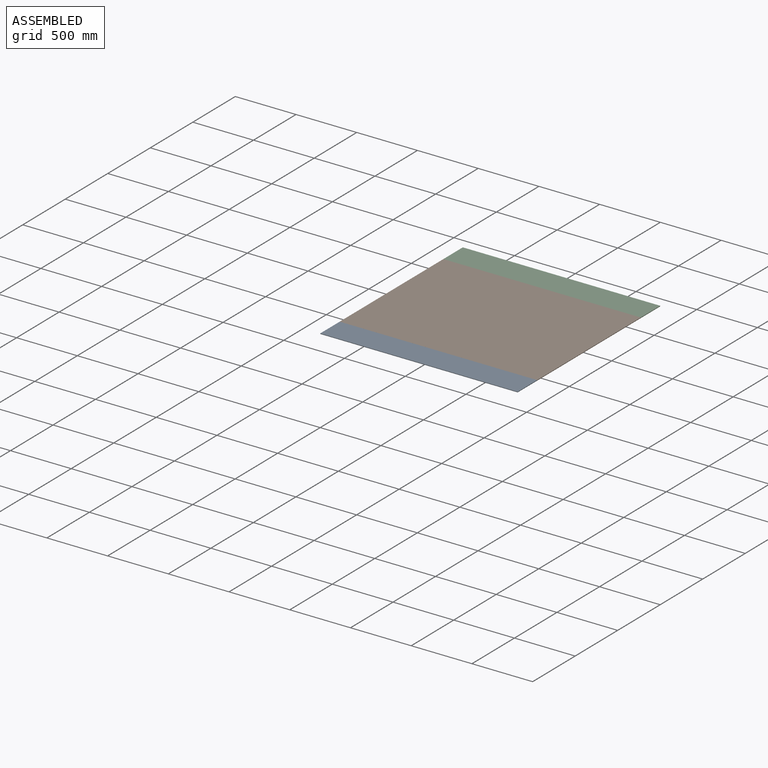
[diagram: assembled view]
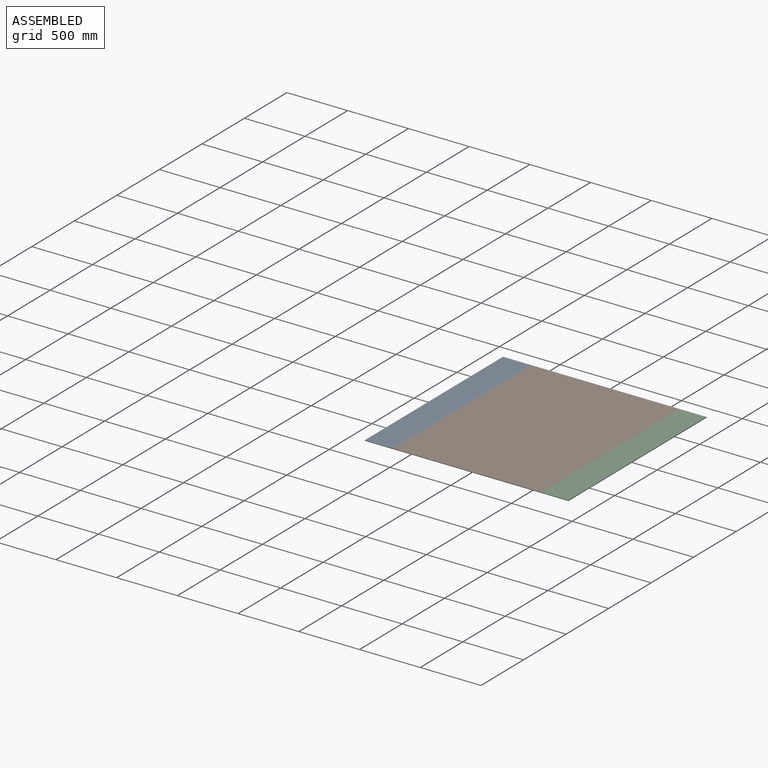
[diagram: assembled view, second angle]
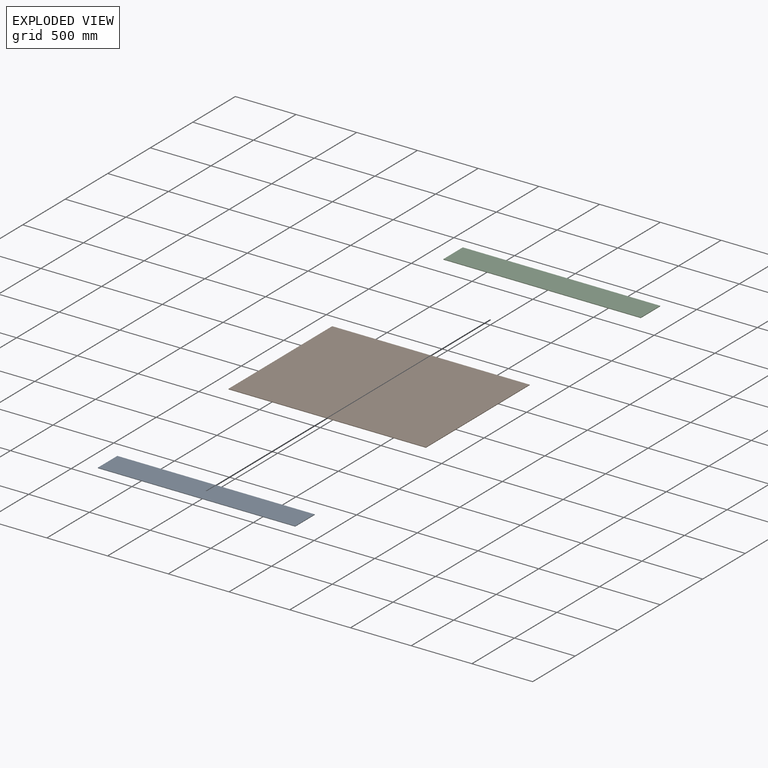
[diagram: exploded view]
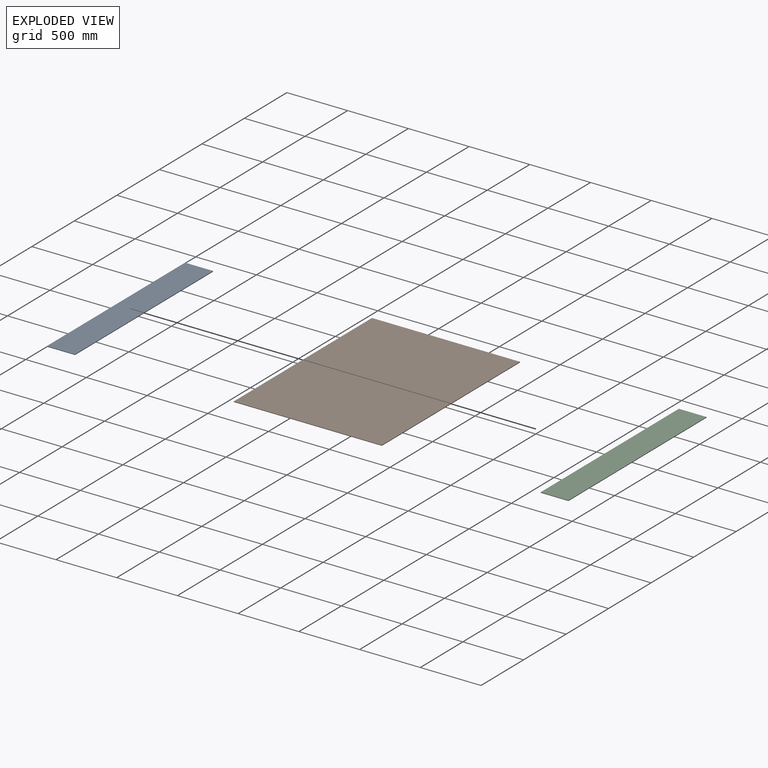
[diagram: exploded view, second angle]
ASSEMBLY  parts=3 mates=2
PART A: 6 faces, bbox 1625.6x228.6x4.8 mm
  f0: plane 1625.6x4.76mm, normal (0,1,0), area 7741.9mm2, adj f1,f3,f4,f5
  f1: plane 228.6x4.76mm, normal (1,0,0), area 1088.7mm2, adj f0,f2,f4,f5
  f2: plane 1625.6x4.76mm, normal (0,-1,0), area 7741.9mm2, adj f1,f3,f4,f5
  f3: plane 228.6x4.76mm, normal (-1,0,0), area 1088.7mm2, adj f0,f2,f4,f5
  f4: plane 1625.6x228.6mm, normal (0,0,-1), area 371612.2mm2, adj f0,f1,f2,f3
  f5: plane 1625.6x228.6mm, normal (0,0,1), area 371612.2mm2, adj f0,f1,f2,f3
PART B: 6 faces, bbox 1625.6x1219.2x4.8 mm
  f0: plane 1219.2x4.76mm, normal (1,0,0), area 5806.4mm2, adj f1,f3,f4,f5
  f1: plane 1625.6x4.76mm, normal (0,-1,0), area 7741.9mm2, adj f0,f2,f4,f5
  f2: plane 1219.2x4.76mm, normal (-1,0,0), area 5806.4mm2, adj f1,f3,f4,f5
  f3: plane 1625.6x4.76mm, normal (0,1,0), area 7741.9mm2, adj f0,f2,f4,f5
  f4: plane 1625.6x1219.2mm, normal (0,0,-1), area 1981931.5mm2, adj f0,f1,f2,f3
  f5: plane 1625.6x1219.2mm, normal (0,0,1), area 1981931.5mm2, adj f0,f1,f2,f3
PART C: same geometry as A
PLACE A rot(axis=(0,0,-1),180deg) t=(-1879.6,-1524,4.76)mm
PLACE B t=(1879.6,0,4.76)mm
PLACE C t=(1879.6,1524,4.76)mm
MATE fastened A.f2 <-> B.f1  axis (0,1,0) through (0,-609.6,4.76)mm
MATE fastened C.f2 <-> B.f3  axis (0,-1,0) through (0,609.6,4.76)mm
